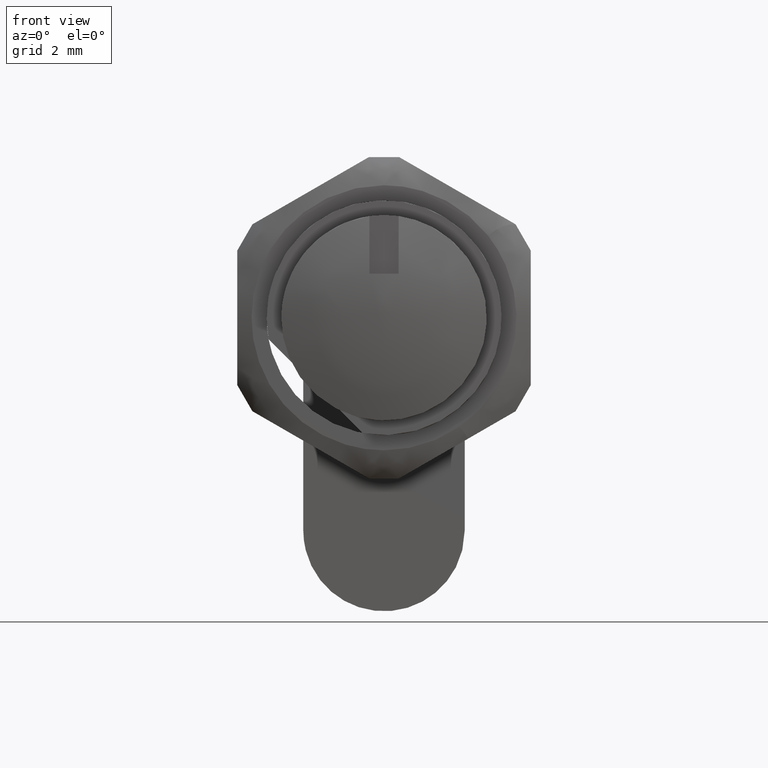
[diagram: clean part render]
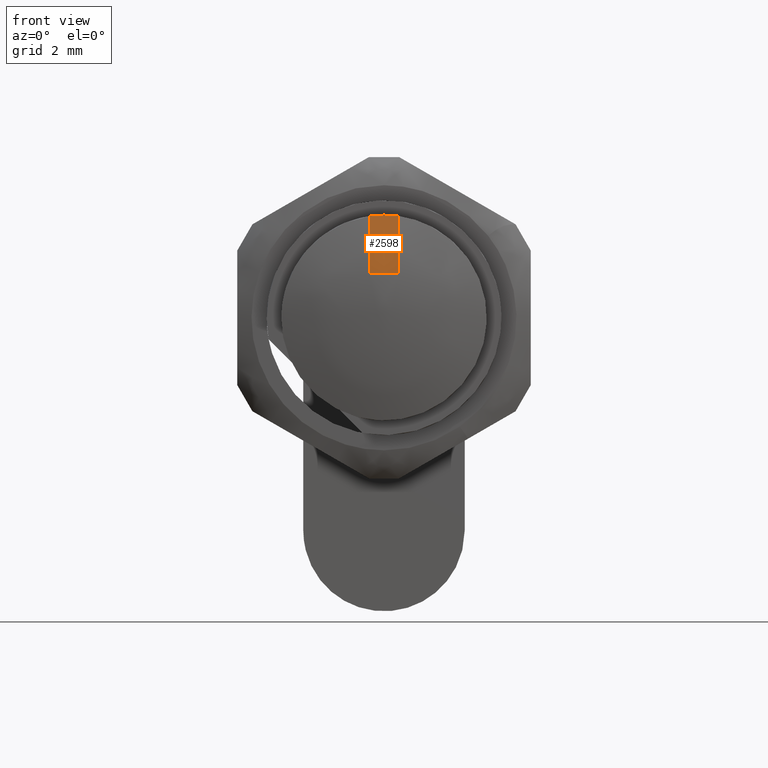
[diagram: same view with one face highlighted and labeled with its STEP entity id]
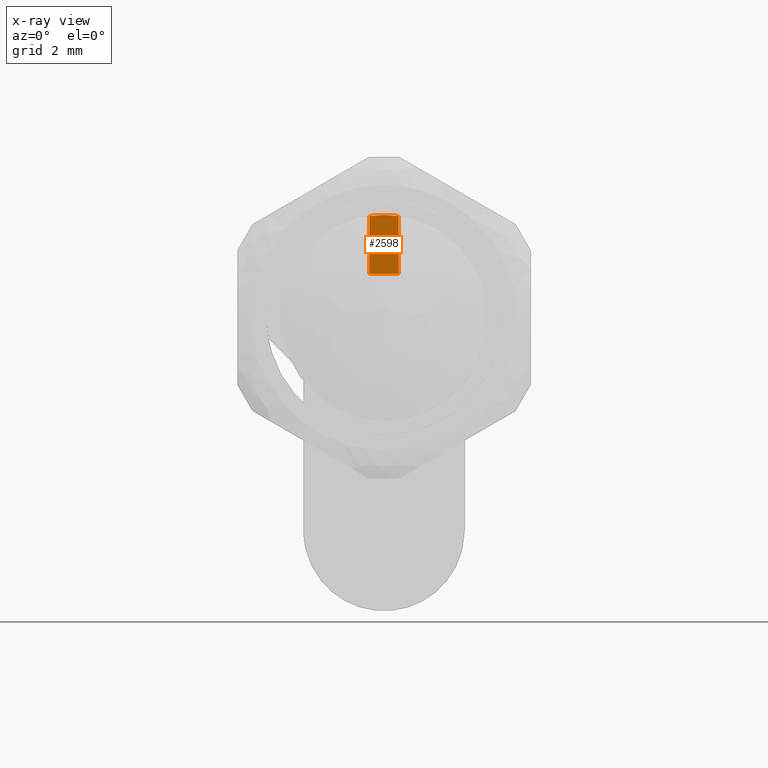
[diagram: x-ray of the same camera — body ghosted, the highlighted face saturated]
A machine part, front view. The second image highlights one B-rep face of the part: STEP entity #2598.
The next image is the same camera in x-ray: the body ghosted, the highlighted face saturated — about 0% of this face is hidden behind the body in this view.
In plain terms, the highlighted face is a freeform B-spline surface patch.
Its self-contained STEP definition (entity closure, byte-faithful):
#2465=CARTESIAN_POINT('',(0.500000000000056,0.500000000000021,3.464101615137750));
#2466=VERTEX_POINT('',#2465);
#2480=CARTESIAN_POINT('',(0.500000000000000,-0.499999999999994,3.464101615137770));
#2481=VERTEX_POINT('',#2480);
#2482=CARTESIAN_POINT('',(0.500000000000000,-0.499999999999994,3.464101615137770));
#2483=CARTESIAN_POINT('',(0.500000000000056,1.436958E-014,3.536270398786459));
#2484=CARTESIAN_POINT('',(0.500000000000056,0.500000000000021,3.464101615137753));
#2492=(BOUNDED_CURVE()B_SPLINE_CURVE(2,(#2482,#2483,#2484),.UNSPECIFIED.,.F.,.U.)CURVE()GEOMETRIC_REPRESENTATION_ITEM()QUASI_UNIFORM_CURVE()RATIONAL_B_SPLINE_CURVE((1.0,0.989743318610787,1.0))REPRESENTATION_ITEM(''));
#2493=EDGE_CURVE('',#2481,#2466,#2492,.T.);
#2571=CARTESIAN_POINT('',(0.500000000000000,0.549949998061828,3.599899996123616));
#2572=CARTESIAN_POINT('',(0.500000000000000,-0.549950024883891,3.599899996123616));
#2573=CARTESIAN_POINT('',(0.500000000000000,0.549949998061828,1.400099950232207));
#2574=CARTESIAN_POINT('',(0.500000000000000,-0.549950024883891,1.400099950232207));
#2575=B_SPLINE_SURFACE_WITH_KNOTS('',1,1,((#2571,#2573),(#2572,#2574)),.UNSPECIFIED.,.F.,.F.,.U.,(2,2),(2,2),(0.041708334948495,0.958291687403247),(0.0,2.199800045891409),.UNSPECIFIED.);
#2576=CARTESIAN_POINT('',(0.500000000000056,0.500000000000021,1.500000000000000));
#2577=VERTEX_POINT('',#2576);
#2578=CARTESIAN_POINT('',(0.500000000000056,-0.499999999999993,1.500000000000000));
#2579=VERTEX_POINT('',#2578);
#2580=CARTESIAN_POINT('',(0.500000000000056,0.500000000000021,1.500000000000000));
#2581=CARTESIAN_POINT('',(0.500000000000056,-0.499999999999993,1.500000000000000));
#2582=QUASI_UNIFORM_CURVE('',1,(#2580,#2581),.UNSPECIFIED.,.F.,.U.);
#2583=EDGE_CURVE('',#2577,#2579,#2582,.T.);
#2584=ORIENTED_EDGE('',*,*,#2583,.T.);
#2585=CARTESIAN_POINT('',(0.500000000000056,-0.499999999999993,1.500000000000000));
#2586=CARTESIAN_POINT('',(0.500000000000000,-0.499999999999994,3.464101615137770));
#2587=QUASI_UNIFORM_CURVE('',1,(#2585,#2586),.UNSPECIFIED.,.F.,.U.);
#2588=EDGE_CURVE('',#2579,#2481,#2587,.T.);
#2589=ORIENTED_EDGE('',*,*,#2588,.T.);
#2590=ORIENTED_EDGE('',*,*,#2493,.T.);
#2591=CARTESIAN_POINT('',(0.500000000000056,0.500000000000021,3.464101615137750));
#2592=CARTESIAN_POINT('',(0.500000000000056,0.500000000000021,1.500000000000000));
#2593=QUASI_UNIFORM_CURVE('',1,(#2591,#2592),.UNSPECIFIED.,.F.,.U.);
#2594=EDGE_CURVE('',#2466,#2577,#2593,.T.);
#2595=ORIENTED_EDGE('',*,*,#2594,.T.);
#2596=EDGE_LOOP('',(#2584,#2589,#2590,#2595));
#2597=FACE_OUTER_BOUND('',#2596,.T.);
#2598=ADVANCED_FACE('',(#2597),#2575,.F.);